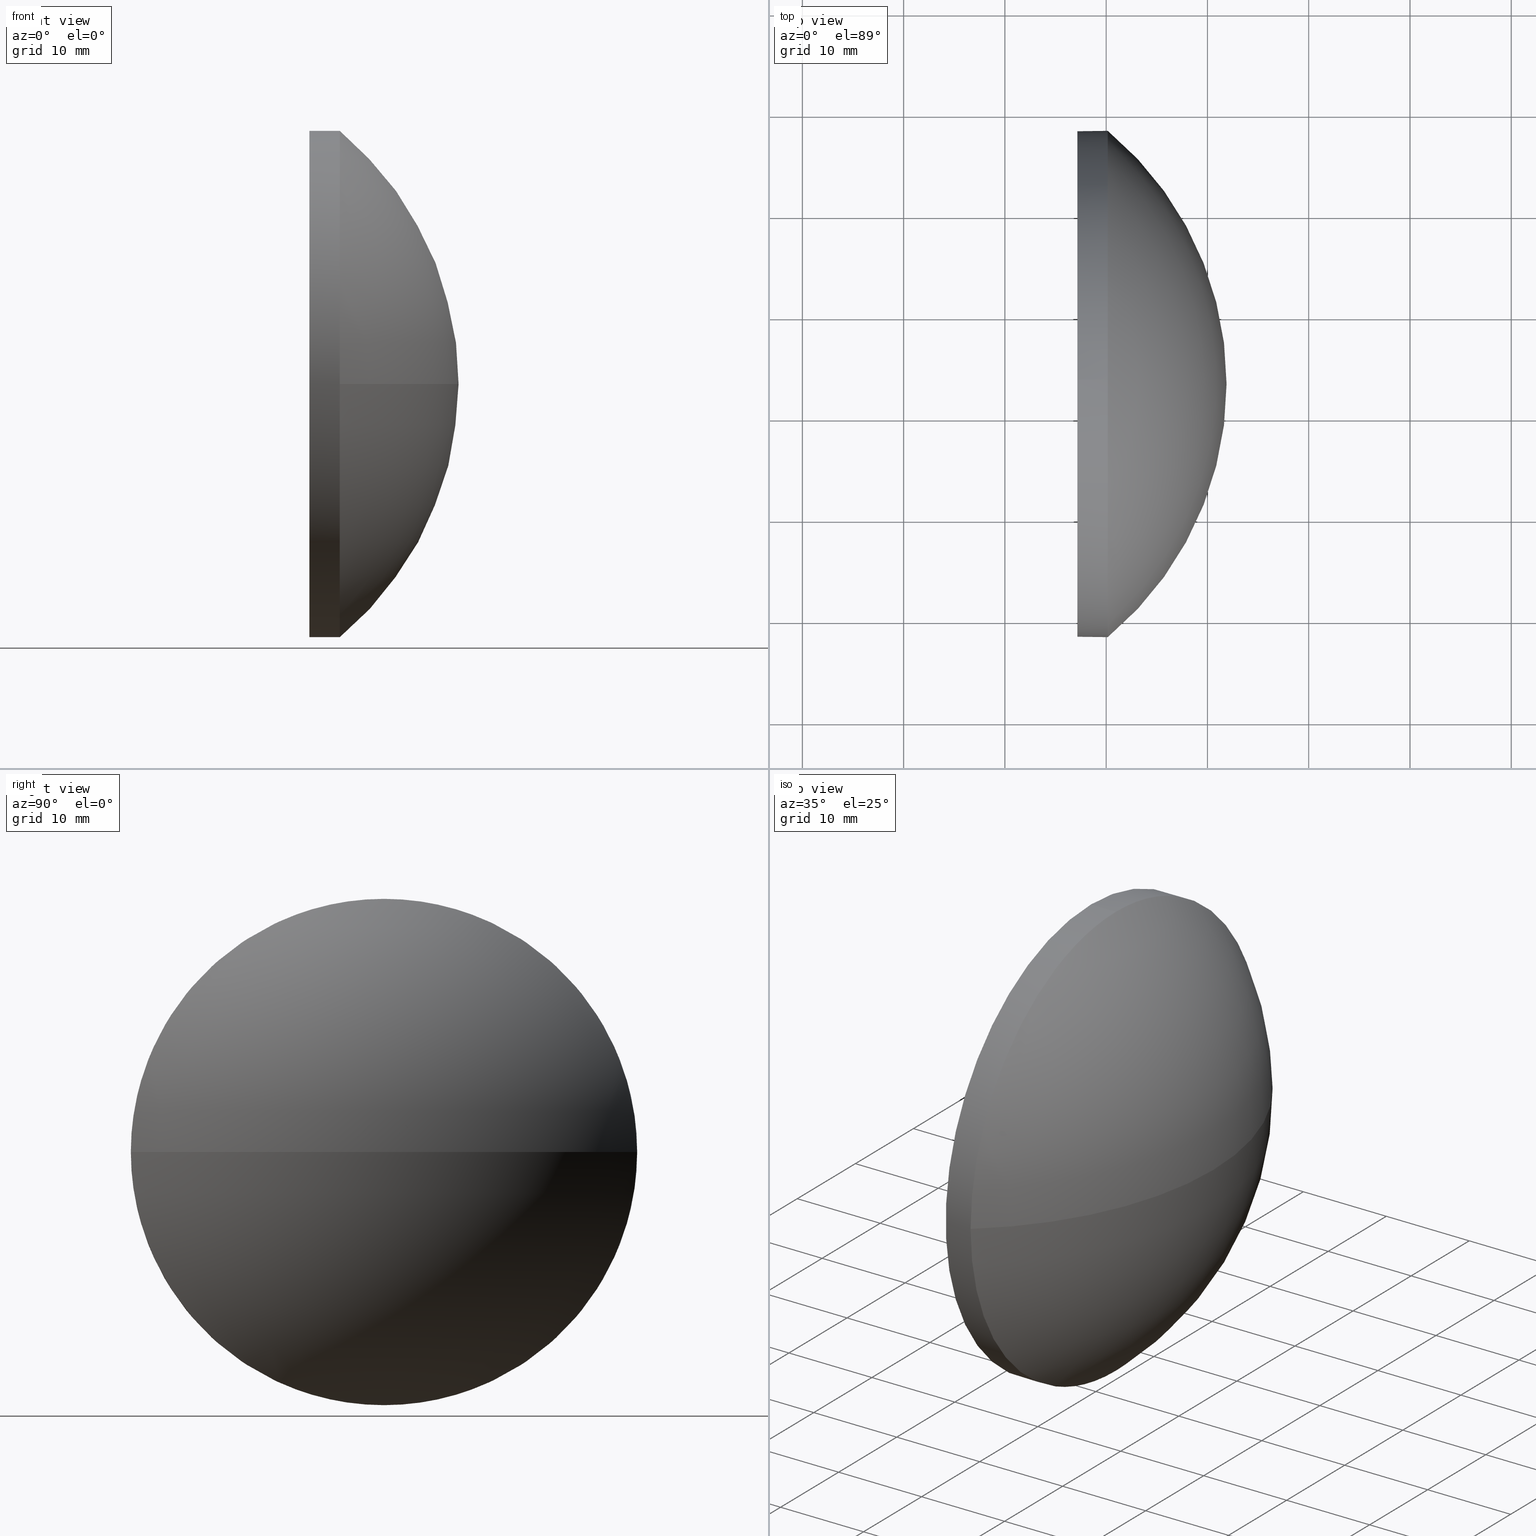
[diagram: canonical four-view strip — front | top / right | iso, engineering-drawing reading convention]
A machine part, canonical four-view strip (front | top / right | iso — engineering-drawing reading convention). The complete STEP part file that produces these views, byte-faithful:
ISO-10303-21;
HEADER;
FILE_DESCRIPTION (( 'STEP AP214' ),
    '1' );
FILE_NAME ('100238.STEP',
    '2019-05-28T07:52:08',
    ( '' ),
    ( '' ),
    'SwSTEP 2.0',
    'SolidWorks 2016',
    '' );
FILE_SCHEMA (( 'AUTOMOTIVE_DESIGN' ));
ENDSEC;

DATA;
#1 = AXIS2_PLACEMENT_3D ( 'NONE', #98, #40, #25 ) ;
#2 = ORIENTED_EDGE ( 'NONE', *, *, #155, .T. ) ;
#3 = CARTESIAN_POINT ( 'NONE',  ( 393.1891829296483800, 63.20629092500522000, 0.0000000000000000000 ) ) ;
#4 = ORIENTED_EDGE ( 'NONE', *, *, #161, .F. ) ;
#5 = DIRECTION ( 'NONE',  ( -1.000000000000000000, -0.0000000000000000000, -0.0000000000000000000 ) ) ;
#6 = DIRECTION ( 'NONE',  ( 1.000000000000000000, 0.0000000000000000000, 0.0000000000000000000 ) ) ;
#7 =( GEOMETRIC_REPRESENTATION_CONTEXT ( 3 ) GLOBAL_UNCERTAINTY_ASSIGNED_CONTEXT ( ( #128 ) ) GLOBAL_UNIT_ASSIGNED_CONTEXT ( ( #167, #52, #152 ) ) REPRESENTATION_CONTEXT ( 'NONE', 'WORKASPACE' ) );
#8 = VECTOR ( 'NONE', #85, 1000.000000000000000 ) ;
#9 = DIRECTION ( 'NONE',  ( -1.000000000000000000, -0.0000000000000000000, -0.0000000000000000000 ) ) ;
#10 = CARTESIAN_POINT ( 'NONE',  ( 0.0000000000000000000, 0.0000000000000000000, 0.0000000000000000000 ) ) ;
#11 = CIRCLE ( 'NONE', #118, 24.99999999999999300 ) ;
#12 = VERTEX_POINT ( 'NONE', #74 ) ;
#13 = AXIS2_PLACEMENT_3D ( 'NONE', #3, #150, #106 ) ;
#14 = ADVANCED_FACE ( 'NONE', ( #96 ), #156, .F. ) ;
#15 = FACE_OUTER_BOUND ( 'NONE', #166, .T. ) ;
#16 = EDGE_CURVE ( 'NONE', #169, #153, #126, .T. ) ;
#17 = DIRECTION ( 'NONE',  ( 1.000000000000000000, 0.0000000000000000000, 0.0000000000000000000 ) ) ;
#18 = ORIENTED_EDGE ( 'NONE', *, *, #37, .T. ) ;
#19 = CARTESIAN_POINT ( 'NONE',  ( 379.3848669996680800, 63.20629092500522000, 0.0000000000000000000 ) ) ;
#20 = SURFACE_STYLE_USAGE ( .BOTH. , #48 ) ;
#21 = SHAPE_DEFINITION_REPRESENTATION ( #54, #41 ) ;
#22 = CARTESIAN_POINT ( 'NONE',  ( 397.1609582187644500, 63.20629092500522000, 24.99999999999999300 ) ) ;
#23 = EDGE_CURVE ( 'NONE', #75, #55, #90, .T. ) ;
#24 = CYLINDRICAL_SURFACE ( 'NONE', #13, 24.99999999999999300 ) ;
#25 = DIRECTION ( 'NONE',  ( 0.0000000000000000000, 0.0000000000000000000, 1.000000000000000000 ) ) ;
#26 = ORIENTED_EDGE ( 'NONE', *, *, #155, .F. ) ;
#27 = FILL_AREA_STYLE ('',( #53 ) ) ;
#28 = ORIENTED_EDGE ( 'NONE', *, *, #37, .F. ) ;
#29 = VERTEX_POINT ( 'NONE', #172 ) ;
#30 = DIRECTION ( 'NONE',  ( -1.000000000000000000, -0.0000000000000000000, -0.0000000000000000000 ) ) ;
#31 = DIRECTION ( 'NONE',  ( 0.0000000000000000000, 1.000000000000000000, 0.0000000000000000000 ) ) ;
#32 = DIRECTION ( 'NONE',  ( -1.000000000000000000, -0.0000000000000000000, -0.0000000000000000000 ) ) ;
#33 = EDGE_CURVE ( 'NONE', #135, #55, #120, .T. ) ;
#34 = DIRECTION ( 'NONE',  ( -1.000000000000000000, -0.0000000000000000000, -0.0000000000000000000 ) ) ;
#35 = STYLED_ITEM ( 'NONE', ( #57 ), #41 ) ;
#36 = CARTESIAN_POINT ( 'NONE',  ( 397.1609582187644500, 63.20629092500522000, 0.0000000000000000000 ) ) ;
#37 = EDGE_CURVE ( 'NONE', #169, #12, #47, .T. ) ;
#38 = APPLICATION_CONTEXT ( 'automotive_design' ) ;
#39 = DIRECTION ( 'NONE',  ( 1.000000000000000000, 0.0000000000000000000, 0.0000000000000000000 ) ) ;
#40 = DIRECTION ( 'NONE',  ( -1.000000000000000000, -0.0000000000000000000, -0.0000000000000000000 ) ) ;
#41 = ADVANCED_BREP_SHAPE_REPRESENTATION ( '100238', ( #111, #70 ), #7 ) ;
#42 = CIRCLE ( 'NONE', #129, 24.99999999999999300 ) ;
#43 = CLOSED_SHELL ( 'NONE', ( #115, #44, #59, #101, #14 ) ) ;
#44 = ADVANCED_FACE ( 'NONE', ( #15 ), #159, .T. ) ;
#45 = FACE_OUTER_BOUND ( 'NONE', #186, .T. ) ;
#46 = EDGE_CURVE ( 'NONE', #135, #153, #58, .T. ) ;
#47 = CIRCLE ( 'NONE', #102, 32.50609121909636900 ) ;
#48 = SURFACE_SIDE_STYLE ('',( #88 ) ) ;
#49 = CARTESIAN_POINT ( 'NONE',  ( 397.1609582187644500, 63.20629092500522000, 0.0000000000000000000 ) ) ;
#50 = COLOUR_RGB ( '',1.000000000000000000, 1.000000000000000000, 1.000000000000000000 ) ;
#51 = PRESENTATION_LAYER_ASSIGNMENT (  '', '', ( #168 ) ) ;
#52 =( NAMED_UNIT ( * ) PLANE_ANGLE_UNIT ( ) SI_UNIT ( $, .RADIAN. ) );
#53 = FILL_AREA_STYLE_COLOUR ( '', #50 ) ;
#54 = PRODUCT_DEFINITION_SHAPE ( 'NONE', 'NONE',  #113 ) ;
#55 = VERTEX_POINT ( 'NONE', #104 ) ;
#56 =( NAMED_UNIT ( * ) SI_UNIT ( $, .STERADIAN. ) SOLID_ANGLE_UNIT ( ) );
#57 = PRESENTATION_STYLE_ASSIGNMENT (( #139 ) ) ;
#58 = CIRCLE ( 'NONE', #114, 24.99999999999999300 ) ;
#59 = ADVANCED_FACE ( 'NONE', ( #117 ), #89, .T. ) ;
#60 = CIRCLE ( 'NONE', #1, 24.99999999999999300 ) ;
#61 = MECHANICAL_DESIGN_GEOMETRIC_PRESENTATION_REPRESENTATION (  '', ( #168 ), #71 ) ;
#62 = LINE ( 'NONE', #165, #8 ) ;
#63 = CARTESIAN_POINT ( 'NONE',  ( 379.3848669996680800, 63.20629092500522000, 0.0000000000000000000 ) ) ;
#64 = ORIENTED_EDGE ( 'NONE', *, *, #95, .F. ) ;
#65 = DIRECTION ( 'NONE',  ( 0.0000000000000000000, 1.224646799147353200E-016, -1.000000000000000000 ) ) ;
#66 = ORIENTED_EDGE ( 'NONE', *, *, #33, .F. ) ;
#67 =( NAMED_UNIT ( * ) PLANE_ANGLE_UNIT ( ) SI_UNIT ( $, .RADIAN. ) );
#68 = DIRECTION ( 'NONE',  ( 0.0000000000000000000, 0.0000000000000000000, 1.000000000000000000 ) ) ;
#69 = ORIENTED_EDGE ( 'NONE', *, *, #164, .F. ) ;
#70 = AXIS2_PLACEMENT_3D ( 'NONE', #10, #125, #39 ) ;
#71 =( GEOMETRIC_REPRESENTATION_CONTEXT ( 3 ) GLOBAL_UNCERTAINTY_ASSIGNED_CONTEXT ( ( #154 ) ) GLOBAL_UNIT_ASSIGNED_CONTEXT ( ( #122, #67, #151 ) ) REPRESENTATION_CONTEXT ( 'NONE', 'WORKASPACE' ) );
#72 = ORIENTED_EDGE ( 'NONE', *, *, #16, .F. ) ;
#73 = EDGE_CURVE ( 'NONE', #153, #29, #11, .T. ) ;
#74 = CARTESIAN_POINT ( 'NONE',  ( 400.1609582187644500, 88.20629092500520600, 0.0000000000000000000 ) ) ;
#75 = VERTEX_POINT ( 'NONE', #22 ) ;
#76 = CARTESIAN_POINT ( 'NONE',  ( 400.1609582187644500, 63.20629092500522000, 0.0000000000000000000 ) ) ;
#77 = FILL_AREA_STYLE ('',( #160 ) ) ;
#78 = CARTESIAN_POINT ( 'NONE',  ( 379.3848669996680800, 63.20629092500522000, 0.0000000000000000000 ) ) ;
#79 = CARTESIAN_POINT ( 'NONE',  ( 400.1609582187644500, 63.20629092500522000, 0.0000000000000000000 ) ) ;
#80 = DIRECTION ( 'NONE',  ( 0.0000000000000000000, 0.0000000000000000000, 1.000000000000000000 ) ) ;
#81 = ORIENTED_EDGE ( 'NONE', *, *, #33, .T. ) ;
#82 = APPLICATION_PROTOCOL_DEFINITION ( 'draft international standard', 'automotive_design', 1998, #163 ) ;
#83 = DIRECTION ( 'NONE',  ( 0.0000000000000000000, 0.0000000000000000000, 1.000000000000000000 ) ) ;
#84 = PRODUCT ( '100238', '100238', '', ( #94 ) ) ;
#85 = DIRECTION ( 'NONE',  ( -1.000000000000000000, -0.0000000000000000000, -0.0000000000000000000 ) ) ;
#86 = VECTOR ( 'NONE', #149, 1000.000000000000000 ) ;
#87 = AXIS2_PLACEMENT_3D ( 'NONE', #173, #17, #116 ) ;
#88 = SURFACE_STYLE_FILL_AREA ( #77 ) ;
#89 = SPHERICAL_SURFACE ( 'NONE', #124, 32.50609121909636900 ) ;
#90 = CIRCLE ( 'NONE', #100, 24.99999999999999300 ) ;
#91 = COLOUR_RGB ( '',1.000000000000000000, 1.000000000000000000, 1.000000000000000000 ) ;
#92 = MECHANICAL_DESIGN_GEOMETRIC_PRESENTATION_REPRESENTATION (  '', ( #35 ), #184 ) ;
#93 = CARTESIAN_POINT ( 'NONE',  ( 379.3848669996680800, 63.20629092500522000, 0.0000000000000000000 ) ) ;
#94 = PRODUCT_CONTEXT ( 'NONE', #163, 'mechanical' ) ;
#95 = EDGE_CURVE ( 'NONE', #29, #12, #157, .T. ) ;
#96 = FACE_OUTER_BOUND ( 'NONE', #174, .T. ) ;
#97 = CARTESIAN_POINT ( 'NONE',  ( 400.1609582187644500, 38.20629092500523400, -3.061616997868381500E-015 ) ) ;
#98 = CARTESIAN_POINT ( 'NONE',  ( 400.1609582187644500, 63.20629092500522000, 0.0000000000000000000 ) ) ;
#99 = ORIENTED_EDGE ( 'NONE', *, *, #164, .T. ) ;
#100 = AXIS2_PLACEMENT_3D ( 'NONE', #49, #5, #136 ) ;
#101 = ADVANCED_FACE ( 'NONE', ( #45 ), #24, .T. ) ;
#102 = AXIS2_PLACEMENT_3D ( 'NONE', #19, #121, #6 ) ;
#103 = DIRECTION ( 'NONE',  ( 0.0000000000000000000, 0.0000000000000000000, 1.000000000000000000 ) ) ;
#104 = CARTESIAN_POINT ( 'NONE',  ( 397.1609582187644500, 63.20629092500522000, -24.99999999999999300 ) ) ;
#105 = DIRECTION ( 'NONE',  ( 0.0000000000000000000, 0.0000000000000000000, 1.000000000000000000 ) ) ;
#106 = DIRECTION ( 'NONE',  ( 0.0000000000000000000, 0.0000000000000000000, 1.000000000000000000 ) ) ;
#107 = CARTESIAN_POINT ( 'NONE',  ( 411.8909582187644100, 63.20629092500522000, 0.0000000000000000000 ) ) ;
#108 = CYLINDRICAL_SURFACE ( 'NONE', #158, 24.99999999999999300 ) ;
#109 = ORIENTED_EDGE ( 'NONE', *, *, #46, .T. ) ;
#110 = AXIS2_PLACEMENT_3D ( 'NONE', #93, #119, #31 ) ;
#111 = MANIFOLD_SOLID_BREP ( '��ת1', #43 ) ;
#112 = ORIENTED_EDGE ( 'NONE', *, *, #23, .F. ) ;
#113 = PRODUCT_DEFINITION ( 'δ֪', '', #170, #148 ) ;
#114 = AXIS2_PLACEMENT_3D ( 'NONE', #175, #30, #103 ) ;
#115 = ADVANCED_FACE ( 'NONE', ( #130 ), #108, .T. ) ;
#116 = DIRECTION ( 'NONE',  ( 0.0000000000000000000, 0.0000000000000000000, -1.000000000000000000 ) ) ;
#117 = FACE_OUTER_BOUND ( 'NONE', #176, .T. ) ;
#118 = AXIS2_PLACEMENT_3D ( 'NONE', #76, #34, #80 ) ;
#119 = DIRECTION ( 'NONE',  ( -0.0000000000000000000, 0.0000000000000000000, -1.000000000000000000 ) ) ;
#120 = LINE ( 'NONE', #177, #86 ) ;
#121 = DIRECTION ( 'NONE',  ( -0.0000000000000000000, 0.0000000000000000000, 1.000000000000000000 ) ) ;
#122 =( LENGTH_UNIT ( ) NAMED_UNIT ( * ) SI_UNIT ( .MILLI., .METRE. ) );
#123 = DIRECTION ( 'NONE',  ( 0.0000000000000000000, 1.000000000000000000, 0.0000000000000000000 ) ) ;
#124 = AXIS2_PLACEMENT_3D ( 'NONE', #78, #162, #123 ) ;
#125 = DIRECTION ( 'NONE',  ( 0.0000000000000000000, 0.0000000000000000000, 1.000000000000000000 ) ) ;
#126 = CIRCLE ( 'NONE', #133, 32.50609121909636900 ) ;
#127 = CARTESIAN_POINT ( 'NONE',  ( 400.1609582187644500, 63.20629092500522000, -24.99999999999999300 ) ) ;
#128 = UNCERTAINTY_MEASURE_WITH_UNIT (LENGTH_MEASURE( 1.000000000000000100E-005 ), #167, 'distance_accuracy_value', 'NONE');
#129 = AXIS2_PLACEMENT_3D ( 'NONE', #36, #138, #83 ) ;
#130 = FACE_OUTER_BOUND ( 'NONE', #185, .T. ) ;
#131 = ORIENTED_EDGE ( 'NONE', *, *, #73, .T. ) ;
#132 = SURFACE_STYLE_FILL_AREA ( #27 ) ;
#133 = AXIS2_PLACEMENT_3D ( 'NONE', #63, #65, #137 ) ;
#134 = PRESENTATION_LAYER_ASSIGNMENT (  '', '', ( #35 ) ) ;
#135 = VERTEX_POINT ( 'NONE', #127 ) ;
#136 = DIRECTION ( 'NONE',  ( 0.0000000000000000000, 0.0000000000000000000, 1.000000000000000000 ) ) ;
#137 = DIRECTION ( 'NONE',  ( 0.0000000000000000000, 1.000000000000000000, 1.224646799147353000E-016 ) ) ;
#138 = DIRECTION ( 'NONE',  ( -1.000000000000000000, -0.0000000000000000000, -0.0000000000000000000 ) ) ;
#139 = SURFACE_STYLE_USAGE ( .BOTH. , #181 ) ;
#140 = ORIENTED_EDGE ( 'NONE', *, *, #95, .T. ) ;
#141 = APPLICATION_PROTOCOL_DEFINITION ( 'draft international standard', 'automotive_design', 1998, #38 ) ;
#142 =( LENGTH_UNIT ( ) NAMED_UNIT ( * ) SI_UNIT ( .MILLI., .METRE. ) );
#143 = AXIS2_PLACEMENT_3D ( 'NONE', #79, #32, #105 ) ;
#144 = PRODUCT_RELATED_PRODUCT_CATEGORY ( 'part', '', ( #84 ) ) ;
#145 = ORIENTED_EDGE ( 'NONE', *, *, #23, .T. ) ;
#146 = ORIENTED_EDGE ( 'NONE', *, *, #16, .T. ) ;
#147 = ORIENTED_EDGE ( 'NONE', *, *, #46, .F. ) ;
#148 = PRODUCT_DEFINITION_CONTEXT ( 'detailed design', #38, 'design' ) ;
#149 = DIRECTION ( 'NONE',  ( -1.000000000000000000, -0.0000000000000000000, -0.0000000000000000000 ) ) ;
#150 = DIRECTION ( 'NONE',  ( -1.000000000000000000, -0.0000000000000000000, -0.0000000000000000000 ) ) ;
#151 =( NAMED_UNIT ( * ) SI_UNIT ( $, .STERADIAN. ) SOLID_ANGLE_UNIT ( ) );
#152 =( NAMED_UNIT ( * ) SI_UNIT ( $, .STERADIAN. ) SOLID_ANGLE_UNIT ( ) );
#153 = VERTEX_POINT ( 'NONE', #97 ) ;
#154 = UNCERTAINTY_MEASURE_WITH_UNIT (LENGTH_MEASURE( 1.000000000000000100E-005 ), #122, 'distance_accuracy_value', 'NONE');
#155 = EDGE_CURVE ( 'NONE', #12, #135, #60, .T. ) ;
#156 = PLANE ( 'NONE',  #87 ) ;
#157 = CIRCLE ( 'NONE', #143, 24.99999999999999300 ) ;
#158 = AXIS2_PLACEMENT_3D ( 'NONE', #182, #9, #68 ) ;
#159 = SPHERICAL_SURFACE ( 'NONE', #110, 32.50609121909636900 ) ;
#160 = FILL_AREA_STYLE_COLOUR ( '', #91 ) ;
#161 = EDGE_CURVE ( 'NONE', #29, #75, #62, .T. ) ;
#162 = DIRECTION ( 'NONE',  ( -0.0000000000000000000, 0.0000000000000000000, -1.000000000000000000 ) ) ;
#163 = APPLICATION_CONTEXT ( 'automotive_design' ) ;
#164 = EDGE_CURVE ( 'NONE', #55, #75, #42, .T. ) ;
#165 = CARTESIAN_POINT ( 'NONE',  ( 393.1891829296483800, 63.20629092500522000, 24.99999999999999300 ) ) ;
#166 = EDGE_LOOP ( 'NONE', ( #28, #146, #147, #26 ) ) ;
#167 =( LENGTH_UNIT ( ) NAMED_UNIT ( * ) SI_UNIT ( .MILLI., .METRE. ) );
#168 = STYLED_ITEM ( 'NONE', ( #180 ), #111 ) ;
#169 = VERTEX_POINT ( 'NONE', #107 ) ;
#170 = PRODUCT_DEFINITION_FORMATION_WITH_SPECIFIED_SOURCE ( '�κ�', '', #84, .NOT_KNOWN. ) ;
#171 = ORIENTED_EDGE ( 'NONE', *, *, #161, .T. ) ;
#172 = CARTESIAN_POINT ( 'NONE',  ( 400.1609582187644500, 63.20629092500522000, 24.99999999999999300 ) ) ;
#173 = CARTESIAN_POINT ( 'NONE',  ( 397.1609582187644500, 63.20629092500522000, 0.0000000000000000000 ) ) ;
#174 = EDGE_LOOP ( 'NONE', ( #145, #99 ) ) ;
#175 = CARTESIAN_POINT ( 'NONE',  ( 400.1609582187644500, 63.20629092500522000, 0.0000000000000000000 ) ) ;
#176 = EDGE_LOOP ( 'NONE', ( #72, #18, #64, #183 ) ) ;
#177 = CARTESIAN_POINT ( 'NONE',  ( 393.1891829296483800, 63.20629092500522000, -24.99999999999999300 ) ) ;
#178 = UNCERTAINTY_MEASURE_WITH_UNIT (LENGTH_MEASURE( 1.000000000000000100E-005 ), #142, 'distance_accuracy_value', 'NONE');
#179 =( NAMED_UNIT ( * ) PLANE_ANGLE_UNIT ( ) SI_UNIT ( $, .RADIAN. ) );
#180 = PRESENTATION_STYLE_ASSIGNMENT (( #20 ) ) ;
#181 = SURFACE_SIDE_STYLE ('',( #132 ) ) ;
#182 = CARTESIAN_POINT ( 'NONE',  ( 393.1891829296483800, 63.20629092500522000, 0.0000000000000000000 ) ) ;
#183 = ORIENTED_EDGE ( 'NONE', *, *, #73, .F. ) ;
#184 =( GEOMETRIC_REPRESENTATION_CONTEXT ( 3 ) GLOBAL_UNCERTAINTY_ASSIGNED_CONTEXT ( ( #178 ) ) GLOBAL_UNIT_ASSIGNED_CONTEXT ( ( #142, #179, #56 ) ) REPRESENTATION_CONTEXT ( 'NONE', 'WORKASPACE' ) );
#185 = EDGE_LOOP ( 'NONE', ( #2, #81, #112, #4, #140 ) ) ;
#186 = EDGE_LOOP ( 'NONE', ( #66, #109, #131, #171, #69 ) ) ;
ENDSEC;
END-ISO-10303-21;
